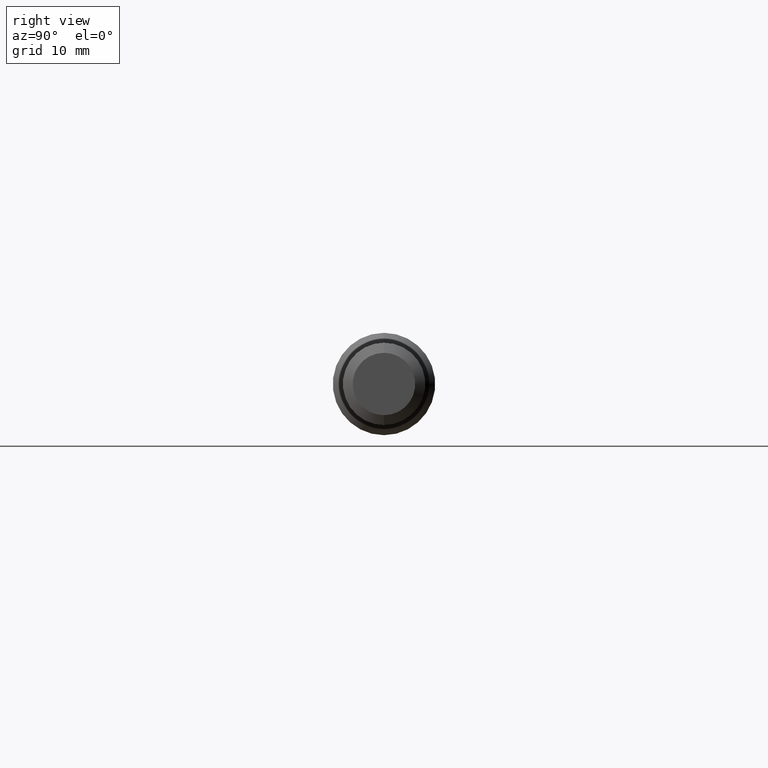
[diagram: clean part render]
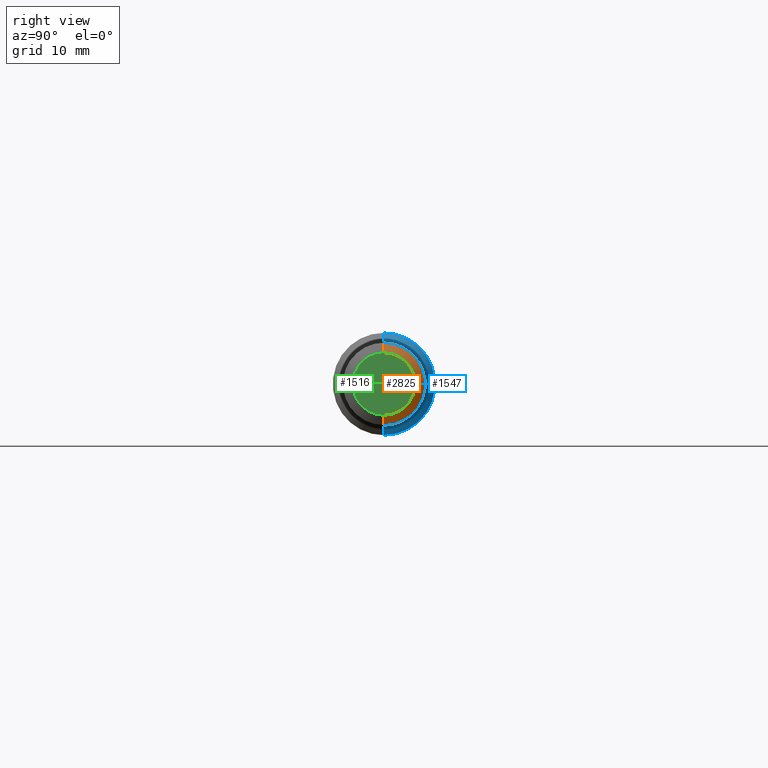
[diagram: same view with three faces highlighted in distinct colors, each labeled with its STEP entity id]
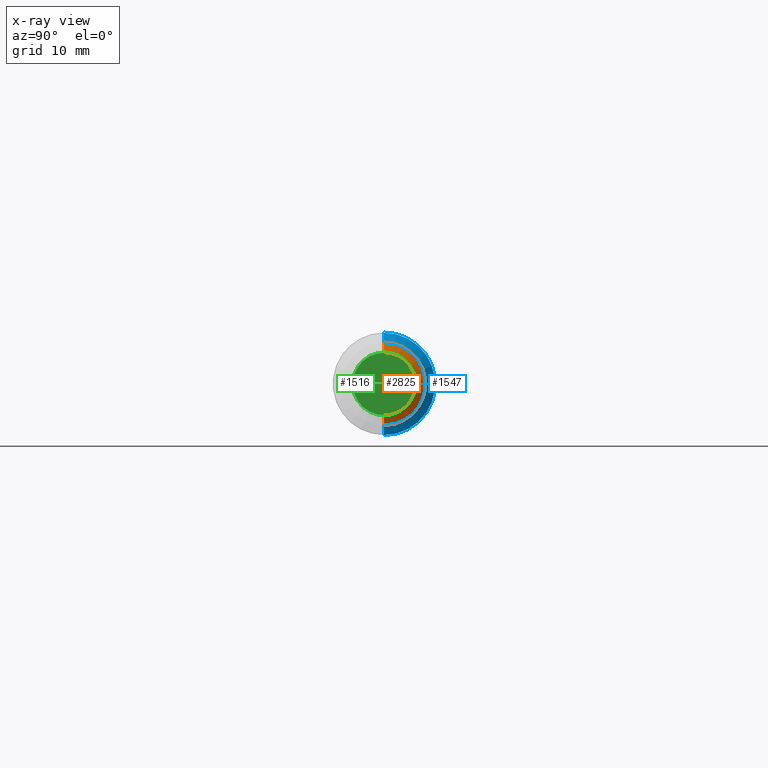
[diagram: x-ray of the same camera — body ghosted, the three highlighted faces saturated]
A machine part, right view with three faces highlighted in distinct colors.
The next image is the same camera in x-ray (body ghosted, the three faces saturated) — at least one of them is partly hidden behind the body in this view.
Their STEP definitions:

[orange] entity #2825 — the highlighted conical surface has half-angle 60.2 deg.
#18 = DIRECTION ( 'NONE',  ( -0.4969739610275644703, 0.0000000000000000000, 0.8677654533689231897 ) ) ;
#65 = VECTOR ( 'NONE', #576, 39.37007874015748143 ) ;
#195 = DIRECTION ( 'NONE',  ( 0.0000000000000000000, 0.0000000000000000000, 1.000000000000000000 ) ) ;
#289 = EDGE_LOOP ( 'NONE', ( #1170, #527, #1047, #1955 ) ) ;
#356 = VERTEX_POINT ( 'NONE', #2404 ) ;
#386 = CARTESIAN_POINT ( 'NONE',  ( 3.468449999999999811, 0.0000000000000000000, 0.2010000000000002340 ) ) ;
#417 = CARTESIAN_POINT ( 'NONE',  ( 3.496266666666666634, 1.866721302577512734E-17, -0.1524293619905099928 ) ) ;
#527 = ORIENTED_EDGE ( 'NONE', *, *, #2605, .T. ) ;
#576 = DIRECTION ( 'NONE',  ( -0.4969739610275644703, 1.062706184878903627E-16, -0.8677654533689231897 ) ) ;
#591 = EDGE_CURVE ( 'NONE', #2777, #2004, #2516, .T. ) ;
#665 = CARTESIAN_POINT ( 'NONE',  ( 3.468449999999999811, 0.0000000000000000000, 0.0000000000000000000 ) ) ;
#672 = LINE ( 'NONE', #2891, #65 ) ;
#795 = LINE ( 'NONE', #1872, #2530 ) ;
#836 = VERTEX_POINT ( 'NONE', #417 ) ;
#870 = EDGE_CURVE ( 'NONE', #356, #2777, #795, .T. ) ;
#903 = EDGE_CURVE ( 'NONE', #356, #836, #1854, .T. ) ;
#946 = CARTESIAN_POINT ( 'NONE',  ( 3.496266666666666634, 0.0000000000000000000, 0.0000000000000000000 ) ) ;
#1047 = ORIENTED_EDGE ( 'NONE', *, *, #591, .F. ) ;
#1067 = AXIS2_PLACEMENT_3D ( 'NONE', #946, #1431, #1421 ) ;
#1096 = CARTESIAN_POINT ( 'NONE',  ( 3.466822996022891790, 0.0000000000000000000, 0.0000000000000000000 ) ) ;
#1170 = ORIENTED_EDGE ( 'NONE', *, *, #903, .T. ) ;
#1349 = DIRECTION ( 'NONE',  ( -1.000000000000000000, -0.0000000000000000000, -0.0000000000000000000 ) ) ;
#1421 = DIRECTION ( 'NONE',  ( 0.0000000000000000000, 0.0000000000000000000, 1.000000000000000000 ) ) ;
#1431 = DIRECTION ( 'NONE',  ( -1.000000000000000000, -0.0000000000000000000, -0.0000000000000000000 ) ) ;
#1728 = AXIS2_PLACEMENT_3D ( 'NONE', #1096, #2025, #1826 ) ;
#1826 = DIRECTION ( 'NONE',  ( 0.0000000000000000000, 0.0000000000000000000, 1.000000000000000000 ) ) ;
#1854 = CIRCLE ( 'NONE', #1067, 0.1524293619905099928 ) ;
#1872 = CARTESIAN_POINT ( 'NONE',  ( 3.466822996022891790, 0.0000000000000000000, 0.2038409090909092392 ) ) ;
#1934 = AXIS2_PLACEMENT_3D ( 'NONE', #665, #1349, #195 ) ;
#1955 = ORIENTED_EDGE ( 'NONE', *, *, #870, .F. ) ;
#2004 = VERTEX_POINT ( 'NONE', #2801 ) ;
#2025 = DIRECTION ( 'NONE',  ( -1.000000000000000000, -0.0000000000000000000, -0.0000000000000000000 ) ) ;
#2117 = CONICAL_SURFACE ( 'NONE', #1728, 0.2038409090909092392, 1.050688209700575859 ) ;
#2404 = CARTESIAN_POINT ( 'NONE',  ( 3.496266666666666634, 0.0000000000000000000, 0.1524293619905099928 ) ) ;
#2516 = CIRCLE ( 'NONE', #1934, 0.2010000000000002340 ) ;
#2530 = VECTOR ( 'NONE', #18, 39.37007874015748143 ) ;
#2605 = EDGE_CURVE ( 'NONE', #836, #2004, #672, .T. ) ;
#2777 = VERTEX_POINT ( 'NONE', #386 ) ;
#2801 = CARTESIAN_POINT ( 'NONE',  ( 3.468449999999999811, 2.461540066286182816E-17, -0.2010000000000002340 ) ) ;
#2825 = ADVANCED_FACE ( 'NONE', ( #2919 ), #2117, .T. ) ;
#2891 = CARTESIAN_POINT ( 'NONE',  ( 3.466822996022891790, 2.496331168534686335E-17, -0.2038409090909092392 ) ) ;
#2919 = FACE_OUTER_BOUND ( 'NONE', #289, .T. ) ;

[blue] entity #1547 — the highlighted conical surface has half-angle 45 deg.
#31 = DIRECTION ( 'NONE',  ( 0.0000000000000000000, 0.0000000000000000000, 1.000000000000000000 ) ) ;
#278 = EDGE_CURVE ( 'NONE', #412, #587, #2552, .T. ) ;
#309 = EDGE_LOOP ( 'NONE', ( #404, #2623, #828, #2869 ) ) ;
#310 = CARTESIAN_POINT ( 'NONE',  ( 2.374999999999999556, 2.772906514969394800E-17, -0.2030000000000000138 ) ) ;
#404 = ORIENTED_EDGE ( 'NONE', *, *, #1550, .T. ) ;
#412 = VERTEX_POINT ( 'NONE', #622 ) ;
#544 = VECTOR ( 'NONE', #2988, 39.37007874015748143 ) ;
#558 = AXIS2_PLACEMENT_3D ( 'NONE', #2866, #1727, #2661 ) ;
#570 = EDGE_CURVE ( 'NONE', #2731, #412, #2450, .T. ) ;
#575 = CIRCLE ( 'NONE', #2250, 0.2030000000000000138 ) ;
#587 = VERTEX_POINT ( 'NONE', #1829 ) ;
#622 = CARTESIAN_POINT ( 'NONE',  ( 2.328149999999999942, 0.0000000000000000000, 0.2498499999999999888 ) ) ;
#655 = CARTESIAN_POINT ( 'NONE',  ( 2.374999999999999556, 2.486033002269127361E-17, -0.2030000000000000138 ) ) ;
#828 = ORIENTED_EDGE ( 'NONE', *, *, #278, .F. ) ;
#852 = CARTESIAN_POINT ( 'NONE',  ( 2.374999999999999556, 0.0000000000000000000, 0.2030000000000000138 ) ) ;
#888 = DIRECTION ( 'NONE',  ( -0.7071067811865462405, 0.0000000000000000000, 0.7071067811865487940 ) ) ;
#985 = CONICAL_SURFACE ( 'NONE', #1163, 0.2030000000000000138, 0.7853981633974501664 ) ;
#1053 = LINE ( 'NONE', #655, #544 ) ;
#1163 = AXIS2_PLACEMENT_3D ( 'NONE', #1436, #2338, #31 ) ;
#1390 = DIRECTION ( 'NONE',  ( 0.0000000000000000000, 0.0000000000000000000, 1.000000000000000000 ) ) ;
#1436 = CARTESIAN_POINT ( 'NONE',  ( 2.374999999999999556, 0.0000000000000000000, 0.0000000000000000000 ) ) ;
#1438 = EDGE_CURVE ( 'NONE', #2104, #587, #1053, .T. ) ;
#1449 = VECTOR ( 'NONE', #888, 39.37007874015748143 ) ;
#1547 = ADVANCED_FACE ( 'NONE', ( #1779 ), #985, .T. ) ;
#1550 = EDGE_CURVE ( 'NONE', #2731, #2104, #575, .T. ) ;
#1629 = DIRECTION ( 'NONE',  ( -1.000000000000000000, -0.0000000000000000000, -0.0000000000000000000 ) ) ;
#1727 = DIRECTION ( 'NONE',  ( -1.000000000000000000, -0.0000000000000000000, -0.0000000000000000000 ) ) ;
#1779 = FACE_OUTER_BOUND ( 'NONE', #309, .T. ) ;
#1829 = CARTESIAN_POINT ( 'NONE',  ( 2.328149999999999942, 3.059780027669661931E-17, -0.2498499999999999888 ) ) ;
#2104 = VERTEX_POINT ( 'NONE', #310 ) ;
#2250 = AXIS2_PLACEMENT_3D ( 'NONE', #2765, #1629, #1390 ) ;
#2264 = CARTESIAN_POINT ( 'NONE',  ( 2.374999999999999556, 0.0000000000000000000, 0.2030000000000000138 ) ) ;
#2338 = DIRECTION ( 'NONE',  ( -1.000000000000000000, -0.0000000000000000000, -0.0000000000000000000 ) ) ;
#2450 = LINE ( 'NONE', #2264, #1449 ) ;
#2552 = CIRCLE ( 'NONE', #558, 0.2498499999999999888 ) ;
#2623 = ORIENTED_EDGE ( 'NONE', *, *, #1438, .T. ) ;
#2661 = DIRECTION ( 'NONE',  ( 0.0000000000000000000, 0.0000000000000000000, 1.000000000000000000 ) ) ;
#2731 = VERTEX_POINT ( 'NONE', #852 ) ;
#2765 = CARTESIAN_POINT ( 'NONE',  ( 2.374999999999999556, 0.0000000000000000000, 0.0000000000000000000 ) ) ;
#2866 = CARTESIAN_POINT ( 'NONE',  ( 2.328149999999999942, 0.0000000000000000000, 0.0000000000000000000 ) ) ;
#2869 = ORIENTED_EDGE ( 'NONE', *, *, #570, .F. ) ;
#2988 = DIRECTION ( 'NONE',  ( -0.7071067811865462405, 8.659560562354948882E-17, -0.7071067811865487940 ) ) ;

[green] entity #1516 — the highlighted planar face has unit normal (-1, 0, -0).
#199 = EDGE_CURVE ( 'NONE', #2972, #2283, #2083, .T. ) ;
#501 = DIRECTION ( 'NONE',  ( -0.0000000000000000000, 0.0000000000000000000, 1.000000000000000000 ) ) ;
#590 = CARTESIAN_POINT ( 'NONE',  ( 3.500000000000000000, 0.0000000000000000000, 0.1524293619905099928 ) ) ;
#735 = CARTESIAN_POINT ( 'NONE',  ( 3.500000000000000000, 0.0000000000000000000, 0.0000000000000000000 ) ) ;
#822 = DIRECTION ( 'NONE',  ( 0.0000000000000000000, 0.0000000000000000000, 1.000000000000000000 ) ) ;
#991 = DIRECTION ( 'NONE',  ( 0.0000000000000000000, 0.0000000000000000000, 1.000000000000000000 ) ) ;
#1074 = AXIS2_PLACEMENT_3D ( 'NONE', #735, #2603, #991 ) ;
#1166 = ORIENTED_EDGE ( 'NONE', *, *, #199, .F. ) ;
#1171 = DIRECTION ( 'NONE',  ( -1.000000000000000000, 0.0000000000000000000, -0.0000000000000000000 ) ) ;
#1192 = ORIENTED_EDGE ( 'NONE', *, *, #1619, .F. ) ;
#1193 = PLANE ( 'NONE',  #2032 ) ;
#1397 = AXIS2_PLACEMENT_3D ( 'NONE', #2676, #1969, #822 ) ;
#1516 = ADVANCED_FACE ( 'NONE', ( #2526 ), #1193, .F. ) ;
#1619 = EDGE_CURVE ( 'NONE', #2283, #2972, #1667, .T. ) ;
#1667 = CIRCLE ( 'NONE', #1074, 0.1524293619905099928 ) ;
#1886 = CARTESIAN_POINT ( 'NONE',  ( 3.500000000000000000, 0.2030000000000000138, 0.0000000000000000000 ) ) ;
#1969 = DIRECTION ( 'NONE',  ( -1.000000000000000000, -0.0000000000000000000, -0.0000000000000000000 ) ) ;
#2032 = AXIS2_PLACEMENT_3D ( 'NONE', #1886, #1171, #501 ) ;
#2083 = CIRCLE ( 'NONE', #1397, 0.1524293619905099928 ) ;
#2283 = VERTEX_POINT ( 'NONE', #590 ) ;
#2330 = CARTESIAN_POINT ( 'NONE',  ( 3.500000000000000000, 1.866721302577513043E-17, -0.1524293619905099928 ) ) ;
#2526 = FACE_OUTER_BOUND ( 'NONE', #2834, .T. ) ;
#2603 = DIRECTION ( 'NONE',  ( -1.000000000000000000, -0.0000000000000000000, -0.0000000000000000000 ) ) ;
#2676 = CARTESIAN_POINT ( 'NONE',  ( 3.500000000000000000, 0.0000000000000000000, 0.0000000000000000000 ) ) ;
#2834 = EDGE_LOOP ( 'NONE', ( #1192, #1166 ) ) ;
#2972 = VERTEX_POINT ( 'NONE', #2330 ) ;